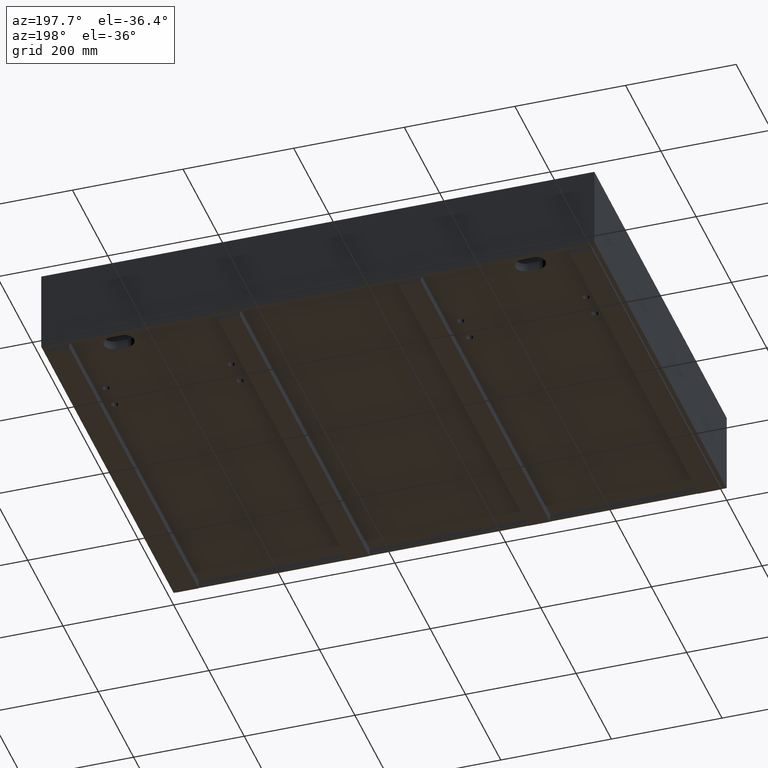
[diagram: clean part render]
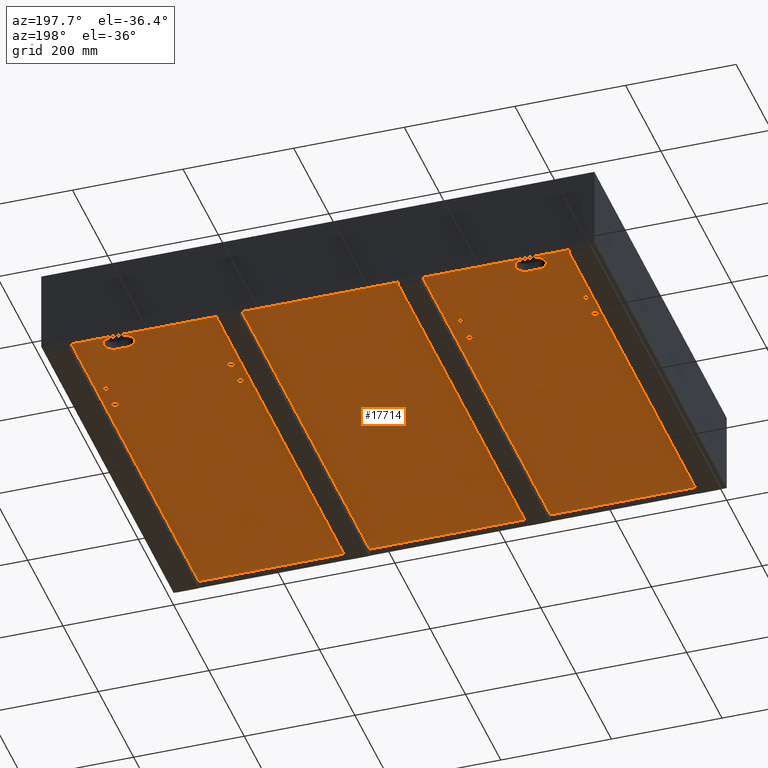
[diagram: same view with one face highlighted and labeled with its STEP entity id]
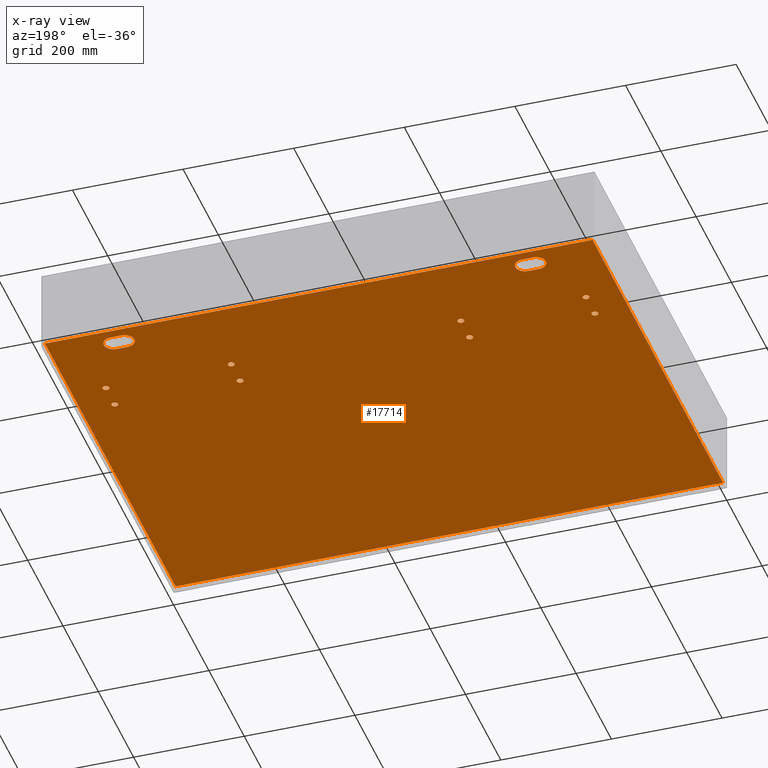
[diagram: x-ray of the same camera — body ghosted, the highlighted face saturated]
A machine part, auxiliary view. The second image highlights one B-rep face of the part: STEP entity #17714.
The next image is the same camera in x-ray: the body ghosted, the highlighted face saturated — about 0% of this face is hidden behind the body in this view.
In plain terms, the highlighted planar face has unit normal (0, -0, 1).
Its self-contained STEP definition (entity closure, byte-faithful):
#21 = DIRECTION ( 'NONE',  ( 1.000000000000000000, 0.0000000000000000000, 0.0000000000000000000 ) ) ;
#138 = CARTESIAN_POINT ( 'NONE',  ( 861.9999999999998863, 727.4999000000001388, -141.0000000000003411 ) ) ;
#200 = ORIENTED_EDGE ( 'NONE', *, *, #14091, .F. ) ;
#457 = DIRECTION ( 'NONE',  ( -0.0000000000000000000, -1.000000000000000000, -0.0000000000000000000 ) ) ;
#652 = DIRECTION ( 'NONE',  ( -1.401796748264086446E-16, 0.0000000000000000000, -1.000000000000000000 ) ) ;
#692 = DIRECTION ( 'NONE',  ( 0.0000000000000000000, 0.0000000000000000000, -1.000000000000000000 ) ) ;
#894 = VERTEX_POINT ( 'NONE', #2104 ) ;
#917 = ORIENTED_EDGE ( 'NONE', *, *, #12169, .F. ) ;
#936 = DIRECTION ( 'NONE',  ( -1.000000000000000000, 0.0000000000000000000, 1.387778780781444492E-15 ) ) ;
#978 = VERTEX_POINT ( 'NONE', #16687 ) ;
#1034 = FACE_BOUND ( 'NONE', #10863, .T. ) ;
#1117 = LINE ( 'NONE', #6865, #1889 ) ;
#1127 = VECTOR ( 'NONE', #3271, 1000.000000000000000 ) ;
#1156 = DIRECTION ( 'NONE',  ( -1.401796748264086446E-16, 0.0000000000000000000, -1.000000000000000000 ) ) ;
#1332 = DIRECTION ( 'NONE',  ( -1.401796748264086446E-16, 0.0000000000000000000, -1.000000000000000000 ) ) ;
#1379 = DIRECTION ( 'NONE',  ( 0.0000000000000000000, 0.0000000000000000000, -1.000000000000000000 ) ) ;
#1506 = DIRECTION ( 'NONE',  ( -1.401796748264086446E-16, 0.0000000000000000000, -1.000000000000000000 ) ) ;
#1555 = EDGE_CURVE ( 'NONE', #12931, #7201, #18020, .T. ) ;
#1605 = CIRCLE ( 'NONE', #12137, 5.999999999999894307 ) ;
#1611 = DIRECTION ( 'NONE',  ( -1.000000000000000000, 0.0000000000000000000, 0.0000000000000000000 ) ) ;
#1655 = CARTESIAN_POINT ( 'NONE',  ( 292.4999999999999432, 539.9999000000001388, -141.0000000000002842 ) ) ;
#1750 = EDGE_CURVE ( 'NONE', #6447, #5030, #18491, .T. ) ;
#1833 = ORIENTED_EDGE ( 'NONE', *, *, #12117, .F. ) ;
#1889 = VECTOR ( 'NONE', #12600, 1000.000000000000000 ) ;
#2081 = CARTESIAN_POINT ( 'NONE',  ( 292.4999999999999432, 589.9999000000001388, -141.0000000000002842 ) ) ;
#2104 = CARTESIAN_POINT ( 'NONE',  ( 118.0000000000002132, 727.4999000000000251, -141.0000000000002558 ) ) ;
#2143 = CARTESIAN_POINT ( 'NONE',  ( 5.000000000000004441, 1736.129184487637076, -141.0000000000002274 ) ) ;
#2175 = AXIS2_PLACEMENT_3D ( 'NONE', #14202, #1332, #7076 ) ;
#2183 = CARTESIAN_POINT ( 'NONE',  ( 292.4999999999999432, 589.9999000000001388, -141.0000000000002842 ) ) ;
#2221 = DIRECTION ( 'NONE',  ( -1.401796748264086446E-16, 0.0000000000000000000, -1.000000000000000000 ) ) ;
#2408 = VERTEX_POINT ( 'NONE', #15754 ) ;
#2444 = FACE_BOUND ( 'NONE', #18387, .T. ) ;
#2456 = AXIS2_PLACEMENT_3D ( 'NONE', #3547, #9306, #15005 ) ;
#2811 = CARTESIAN_POINT ( 'NONE',  ( 66.00000000000005684, 539.9999000000000251, -141.0000000000002274 ) ) ;
#2850 = CARTESIAN_POINT ( 'NONE',  ( 861.9999999999998863, 709.9999000000002525, -141.0000000000003411 ) ) ;
#2931 = CARTESIAN_POINT ( 'NONE',  ( 933.9999999999998863, 589.9999000000000251, -141.0000000000002274 ) ) ;
#3077 = CARTESIAN_POINT ( 'NONE',  ( 881.9999999999998863, 709.9999000000002525, -141.0000000000003695 ) ) ;
#3173 = CARTESIAN_POINT ( 'NONE',  ( 72.00000000000007105, 589.9999000000000251, -141.0000000000002274 ) ) ;
#3194 = AXIS2_PLACEMENT_3D ( 'NONE', #5781, #11529, #17253 ) ;
#3206 = LINE ( 'NONE', #8960, #6407 ) ;
#3214 = CIRCLE ( 'NONE', #3194, 17.49999999999996092 ) ;
#3215 = ORIENTED_EDGE ( 'NONE', *, *, #7215, .T. ) ;
#3228 = ORIENTED_EDGE ( 'NONE', *, *, #3232, .F. ) ;
#3232 = EDGE_CURVE ( 'NONE', #15272, #978, #3615, .T. ) ;
#3271 = DIRECTION ( 'NONE',  ( 1.000000000000000000, 0.0000000000000000000, -1.401796748264086446E-16 ) ) ;
#3404 = AXIS2_PLACEMENT_3D ( 'NONE', #18519, #5633, #11378 ) ;
#3423 = CARTESIAN_POINT ( 'NONE',  ( 701.5000000000002274, 539.9999000000001388, -141.0000000000003411 ) ) ;
#3462 = CARTESIAN_POINT ( 'NONE',  ( 927.9999999999997726, 589.9999000000000251, -141.0000000000002274 ) ) ;
#3547 = CARTESIAN_POINT ( 'NONE',  ( 934.0000000000000000, 539.9999000000000251, -141.0000000000002274 ) ) ;
#3615 = CIRCLE ( 'NONE', #11693, 5.999999999999894307 ) ;
#3682 = AXIS2_PLACEMENT_3D ( 'NONE', #2931, #8688, #14388 ) ;
#3700 = CARTESIAN_POINT ( 'NONE',  ( 861.9999999999998863, 692.4999000000003662, -141.0000000000003411 ) ) ;
#3739 = AXIS2_PLACEMENT_3D ( 'NONE', #13567, #692, #6433 ) ;
#3773 = ORIENTED_EDGE ( 'NONE', *, *, #1750, .F. ) ;
#3780 = EDGE_LOOP ( 'NONE', ( #4621, #8446 ) ) ;
#3820 = VECTOR ( 'NONE', #4779, 1000.000000000000000 ) ;
#3893 = ORIENTED_EDGE ( 'NONE', *, *, #4758, .F. ) ;
#3953 = CARTESIAN_POINT ( 'NONE',  ( 5.000000000000004441, 1736.129184487637076, -141.0000000000002274 ) ) ;
#4010 = EDGE_CURVE ( 'NONE', #9657, #18201, #10178, .T. ) ;
#4155 = EDGE_CURVE ( 'NONE', #18406, #9657, #9805, .T. ) ;
#4194 = EDGE_LOOP ( 'NONE', ( #13761, #7537 ) ) ;
#4421 = DIRECTION ( 'NONE',  ( 1.000000000000000000, 0.0000000000000000000, 0.0000000000000000000 ) ) ;
#4494 = VECTOR ( 'NONE', #7894, 1000.000000000000000 ) ;
#4555 = DIRECTION ( 'NONE',  ( -1.000000000000000000, 0.0000000000000000000, 0.0000000000000000000 ) ) ;
#4621 = ORIENTED_EDGE ( 'NONE', *, *, #14192, .F. ) ;
#4758 = EDGE_CURVE ( 'NONE', #11356, #5611, #8680, .T. ) ;
#4779 = DIRECTION ( 'NONE',  ( -1.000000000000000000, -0.0000000000000000000, 1.401796748264086693E-16 ) ) ;
#4790 = DIRECTION ( 'NONE',  ( 1.000000000000000000, 0.0000000000000000000, 0.0000000000000000000 ) ) ;
#4846 = EDGE_CURVE ( 'NONE', #10912, #8048, #8437, .T. ) ;
#4922 = CIRCLE ( 'NONE', #15425, 5.999999999999894307 ) ;
#5030 = VERTEX_POINT ( 'NONE', #5137 ) ;
#5088 = CARTESIAN_POINT ( 'NONE',  ( 861.9999999999998863, 709.9999000000002525, -141.0000000000003411 ) ) ;
#5137 = CARTESIAN_POINT ( 'NONE',  ( 713.5000000000000000, 539.9999000000001388, -141.0000000000003411 ) ) ;
#5292 = CIRCLE ( 'NONE', #3739, 6.000000000000019540 ) ;
#5370 = FACE_BOUND ( 'NONE', #18088, .T. ) ;
#5450 = CARTESIAN_POINT ( 'NONE',  ( 881.9999999999998863, 692.4999000000002525, -141.0000000000003411 ) ) ;
#5569 = AXIS2_PLACEMENT_3D ( 'NONE', #11719, #17438, #4555 ) ;
#5583 = CIRCLE ( 'NONE', #5569, 6.000000000000116351 ) ;
#5611 = VERTEX_POINT ( 'NONE', #18460 ) ;
#5633 = DIRECTION ( 'NONE',  ( 0.0000000000000000000, 0.0000000000000000000, -1.000000000000000000 ) ) ;
#5675 = EDGE_CURVE ( 'NONE', #15481, #10971, #6797, .T. ) ;
#5781 = CARTESIAN_POINT ( 'NONE',  ( 118.0000000000002132, 709.9999000000000251, -141.0000000000002558 ) ) ;
#5889 = VERTEX_POINT ( 'NONE', #10753 ) ;
#6073 = VECTOR ( 'NONE', #457, 1000.000000000000000 ) ;
#6077 = CARTESIAN_POINT ( 'NONE',  ( 5.000000000000004441, 5.000000000000004441, -141.0000000000002274 ) ) ;
#6107 = CARTESIAN_POINT ( 'NONE',  ( 881.9999999999998863, 727.4999000000001388, -141.0000000000003695 ) ) ;
#6130 = AXIS2_PLACEMENT_3D ( 'NONE', #3077, #8832, #14532 ) ;
#6342 = EDGE_CURVE ( 'NONE', #7770, #15950, #5583, .T. ) ;
#6361 = VERTEX_POINT ( 'NONE', #14597 ) ;
#6394 = DIRECTION ( 'NONE',  ( 1.000000000000000000, 0.0000000000000000000, 0.0000000000000000000 ) ) ;
#6407 = VECTOR ( 'NONE', #14660, 1000.000000000000000 ) ;
#6433 = DIRECTION ( 'NONE',  ( -1.000000000000000000, 0.0000000000000000000, 0.0000000000000000000 ) ) ;
#6447 = VERTEX_POINT ( 'NONE', #3423 ) ;
#6479 = EDGE_CURVE ( 'NONE', #5611, #11356, #5292, .T. ) ;
#6526 = EDGE_LOOP ( 'NONE', ( #10375, #3773 ) ) ;
#6629 = CARTESIAN_POINT ( 'NONE',  ( 940.0000000000001137, 539.9999000000000251, -141.0000000000002274 ) ) ;
#6755 = CARTESIAN_POINT ( 'NONE',  ( 118.0000000000002132, 692.4999000000001388, -141.0000000000002558 ) ) ;
#6763 = CARTESIAN_POINT ( 'NONE',  ( 72.00000000000007105, 539.9999000000000251, -141.0000000000002274 ) ) ;
#6782 = AXIS2_PLACEMENT_3D ( 'NONE', #7166, #12900, #21 ) ;
#6784 = FACE_BOUND ( 'NONE', #9454, .T. ) ;
#6797 = CIRCLE ( 'NONE', #6782, 17.49999999999996092 ) ;
#6818 = VERTEX_POINT ( 'NONE', #9231 ) ;
#6842 = VERTEX_POINT ( 'NONE', #12126 ) ;
#6858 = EDGE_CURVE ( 'NONE', #9680, #8620, #15022, .T. ) ;
#6865 = CARTESIAN_POINT ( 'NONE',  ( 881.9999999999998863, 727.4999000000001388, -141.0000000000003695 ) ) ;
#6905 = DIRECTION ( 'NONE',  ( 1.000000000000000000, 0.0000000000000000000, 0.0000000000000000000 ) ) ;
#7076 = DIRECTION ( 'NONE',  ( 1.000000000000000000, 0.0000000000000000000, 0.0000000000000000000 ) ) ;
#7122 = DIRECTION ( 'NONE',  ( -1.000000000000000000, 0.0000000000000000000, 0.0000000000000000000 ) ) ;
#7166 = CARTESIAN_POINT ( 'NONE',  ( 118.0000000000002132, 709.9999000000000251, -141.0000000000002558 ) ) ;
#7201 = VERTEX_POINT ( 'NONE', #14722 ) ;
#7215 = EDGE_CURVE ( 'NONE', #6818, #8620, #11932, .T. ) ;
#7246 = DIRECTION ( 'NONE',  ( 1.000000000000000000, 0.0000000000000000000, 0.0000000000000000000 ) ) ;
#7401 = DIRECTION ( 'NONE',  ( -1.401796748264086446E-16, 0.0000000000000000000, -1.000000000000000000 ) ) ;
#7516 = EDGE_CURVE ( 'NONE', #10971, #894, #3214, .T. ) ;
#7537 = ORIENTED_EDGE ( 'NONE', *, *, #10772, .F. ) ;
#7605 = LINE ( 'NONE', #13333, #6073 ) ;
#7731 = ORIENTED_EDGE ( 'NONE', *, *, #6858, .F. ) ;
#7770 = VERTEX_POINT ( 'NONE', #6629 ) ;
#7834 = DIRECTION ( 'NONE',  ( -1.401796748264086446E-16, 0.0000000000000000000, -1.000000000000000000 ) ) ;
#7846 = EDGE_LOOP ( 'NONE', ( #200, #11591, #15051, #15815, #13123 ) ) ;
#7863 = CIRCLE ( 'NONE', #18370, 5.999999999999894307 ) ;
#7894 = DIRECTION ( 'NONE',  ( -0.0000000000000000000, -1.000000000000000000, -0.0000000000000000000 ) ) ;
#7938 = DIRECTION ( 'NONE',  ( -1.401796748264086446E-16, 0.0000000000000000000, -1.000000000000000000 ) ) ;
#8048 = VERTEX_POINT ( 'NONE', #13822 ) ;
#8094 = LINE ( 'NONE', #13807, #10929 ) ;
#8195 = FACE_BOUND ( 'NONE', #4194, .T. ) ;
#8224 = DIRECTION ( 'NONE',  ( 1.000000000000000000, 0.0000000000000000000, 0.0000000000000000000 ) ) ;
#8437 = CIRCLE ( 'NONE', #10536, 5.999999999999894307 ) ;
#8446 = ORIENTED_EDGE ( 'NONE', *, *, #1555, .F. ) ;
#8472 = AXIS2_PLACEMENT_3D ( 'NONE', #11942, #17664, #4790 ) ;
#8563 = DIRECTION ( 'NONE',  ( 0.0000000000000000000, 0.0000000000000000000, -1.000000000000000000 ) ) ;
#8605 = DIRECTION ( 'NONE',  ( -1.423362852083534639E-16, 0.0000000000000000000, -1.000000000000000000 ) ) ;
#8620 = VERTEX_POINT ( 'NONE', #6077 ) ;
#8667 = AXIS2_PLACEMENT_3D ( 'NONE', #14249, #1379, #7122 ) ;
#8680 = CIRCLE ( 'NONE', #8667, 6.000000000000019540 ) ;
#8688 = DIRECTION ( 'NONE',  ( 0.0000000000000000000, 0.0000000000000000000, -1.000000000000000000 ) ) ;
#8783 = CARTESIAN_POINT ( 'NONE',  ( 933.9999999999998863, 589.9999000000000251, -141.0000000000002274 ) ) ;
#8832 = DIRECTION ( 'NONE',  ( -1.423362852083534639E-16, 0.0000000000000000000, -1.000000000000000000 ) ) ;
#8960 = CARTESIAN_POINT ( 'NONE',  ( 118.0000000000002132, 692.4999000000001388, -141.0000000000002558 ) ) ;
#9194 = VERTEX_POINT ( 'NONE', #14282 ) ;
#9231 = CARTESIAN_POINT ( 'NONE',  ( 995.0000000000000000, 5.000000000000004441, -141.0000000000003695 ) ) ;
#9306 = DIRECTION ( 'NONE',  ( 0.0000000000000000000, 0.0000000000000000000, -1.000000000000000000 ) ) ;
#9426 = CARTESIAN_POINT ( 'NONE',  ( 100.5000000000002558, 709.9999000000000251, -141.0000000000002558 ) ) ;
#9454 = EDGE_LOOP ( 'NONE', ( #11543, #13851 ) ) ;
#9458 = AXIS2_PLACEMENT_3D ( 'NONE', #8783, #14483, #1611 ) ;
#9624 = FACE_BOUND ( 'NONE', #7846, .T. ) ;
#9657 = VERTEX_POINT ( 'NONE', #17860 ) ;
#9680 = VERTEX_POINT ( 'NONE', #17959 ) ;
#9712 = DIRECTION ( 'NONE',  ( 1.401796748264086446E-16, -0.0000000000000000000, 1.000000000000000000 ) ) ;
#9804 = AXIS2_PLACEMENT_3D ( 'NONE', #5088, #10845, #16566 ) ;
#9805 = CIRCLE ( 'NONE', #9804, 17.49999999999985079 ) ;
#9963 = ORIENTED_EDGE ( 'NONE', *, *, #10783, .F. ) ;
#10153 = AXIS2_PLACEMENT_3D ( 'NONE', #2850, #8605, #14309 ) ;
#10178 = CIRCLE ( 'NONE', #10153, 17.49999999999985079 ) ;
#10306 = CIRCLE ( 'NONE', #2175, 5.999999999999894307 ) ;
#10375 = ORIENTED_EDGE ( 'NONE', *, *, #13253, .F. ) ;
#10437 = LINE ( 'NONE', #16156, #1127 ) ;
#10443 = ORIENTED_EDGE ( 'NONE', *, *, #5675, .F. ) ;
#10462 = ORIENTED_EDGE ( 'NONE', *, *, #17837, .T. ) ;
#10536 = AXIS2_PLACEMENT_3D ( 'NONE', #1655, #7401, #13135 ) ;
#10579 = ORIENTED_EDGE ( 'NONE', *, *, #6479, .F. ) ;
#10595 = CIRCLE ( 'NONE', #2456, 6.000000000000116351 ) ;
#10627 = ORIENTED_EDGE ( 'NONE', *, *, #13434, .F. ) ;
#10753 = CARTESIAN_POINT ( 'NONE',  ( 940.0000000000001137, 589.9999000000000251, -141.0000000000002274 ) ) ;
#10772 = EDGE_CURVE ( 'NONE', #8048, #10912, #7863, .T. ) ;
#10783 = EDGE_CURVE ( 'NONE', #894, #6842, #11586, .T. ) ;
#10845 = DIRECTION ( 'NONE',  ( -1.423362852083534639E-16, 0.0000000000000000000, -1.000000000000000000 ) ) ;
#10863 = EDGE_LOOP ( 'NONE', ( #13079, #1833 ) ) ;
#10887 = ORIENTED_EDGE ( 'NONE', *, *, #7516, .F. ) ;
#10912 = VERTEX_POINT ( 'NONE', #12052 ) ;
#10929 = VECTOR ( 'NONE', #936, 1000.000000000000000 ) ;
#10971 = VERTEX_POINT ( 'NONE', #9426 ) ;
#11122 = FACE_OUTER_BOUND ( 'NONE', #15058, .T. ) ;
#11265 = VERTEX_POINT ( 'NONE', #6107 ) ;
#11289 = EDGE_CURVE ( 'NONE', #16720, #6818, #7605, .T. ) ;
#11293 = EDGE_CURVE ( 'NONE', #6842, #2408, #16587, .T. ) ;
#11356 = VERTEX_POINT ( 'NONE', #3173 ) ;
#11378 = DIRECTION ( 'NONE',  ( -1.000000000000000000, 0.0000000000000000000, 0.0000000000000000000 ) ) ;
#11476 = EDGE_CURVE ( 'NONE', #15950, #7770, #10595, .T. ) ;
#11516 = CIRCLE ( 'NONE', #3404, 6.000000000000019540 ) ;
#11529 = DIRECTION ( 'NONE',  ( -1.423362852083534639E-16, 0.0000000000000000000, -1.000000000000000000 ) ) ;
#11543 = ORIENTED_EDGE ( 'NONE', *, *, #11476, .F. ) ;
#11586 = LINE ( 'NONE', #17308, #12661 ) ;
#11591 = ORIENTED_EDGE ( 'NONE', *, *, #13070, .F. ) ;
#11693 = AXIS2_PLACEMENT_3D ( 'NONE', #2183, #7938, #13654 ) ;
#11719 = CARTESIAN_POINT ( 'NONE',  ( 934.0000000000000000, 539.9999000000000251, -141.0000000000002274 ) ) ;
#11806 = CIRCLE ( 'NONE', #3682, 6.000000000000116351 ) ;
#11932 = LINE ( 'NONE', #17652, #3820 ) ;
#11942 = CARTESIAN_POINT ( 'NONE',  ( 138.0000000000002274, 709.9999000000000251, -141.0000000000002558 ) ) ;
#12052 = CARTESIAN_POINT ( 'NONE',  ( 298.4999999999998295, 539.9999000000001388, -141.0000000000002842 ) ) ;
#12117 = EDGE_CURVE ( 'NONE', #9194, #6361, #10306, .T. ) ;
#12126 = CARTESIAN_POINT ( 'NONE',  ( 138.0000000000002274, 727.4999000000001388, -141.0000000000002558 ) ) ;
#12137 = AXIS2_PLACEMENT_3D ( 'NONE', #14030, #1156, #6905 ) ;
#12169 = EDGE_CURVE ( 'NONE', #5889, #14419, #11806, .T. ) ;
#12212 = ORIENTED_EDGE ( 'NONE', *, *, #13905, .F. ) ;
#12413 = CARTESIAN_POINT ( 'NONE',  ( 286.5000000000000568, 589.9999000000001388, -141.0000000000002842 ) ) ;
#12518 = FACE_BOUND ( 'NONE', #13476, .T. ) ;
#12582 = ORIENTED_EDGE ( 'NONE', *, *, #17616, .F. ) ;
#12600 = DIRECTION ( 'NONE',  ( 1.000000000000000000, -0.0000000000000000000, -1.387778780781444492E-15 ) ) ;
#12661 = VECTOR ( 'NONE', #4421, 1000.000000000000000 ) ;
#12733 = EDGE_LOOP ( 'NONE', ( #9963, #10887, #10443, #12212, #13075 ) ) ;
#12900 = DIRECTION ( 'NONE',  ( -1.423362852083534639E-16, 0.0000000000000000000, -1.000000000000000000 ) ) ;
#12931 = VERTEX_POINT ( 'NONE', #6763 ) ;
#13070 = EDGE_CURVE ( 'NONE', #11265, #14148, #14197, .T. ) ;
#13075 = ORIENTED_EDGE ( 'NONE', *, *, #11293, .F. ) ;
#13079 = ORIENTED_EDGE ( 'NONE', *, *, #13286, .F. ) ;
#13123 = ORIENTED_EDGE ( 'NONE', *, *, #4155, .F. ) ;
#13135 = DIRECTION ( 'NONE',  ( 1.000000000000000000, 0.0000000000000000000, 0.0000000000000000000 ) ) ;
#13253 = EDGE_CURVE ( 'NONE', #5030, #6447, #4922, .T. ) ;
#13286 = EDGE_CURVE ( 'NONE', #6361, #9194, #1605, .T. ) ;
#13333 = CARTESIAN_POINT ( 'NONE',  ( 995.0000000000000000, 1736.129184487637076, -141.0000000000003695 ) ) ;
#13434 = EDGE_CURVE ( 'NONE', #14419, #5889, #17542, .T. ) ;
#13476 = EDGE_LOOP ( 'NONE', ( #10627, #917 ) ) ;
#13528 = CARTESIAN_POINT ( 'NONE',  ( 707.5000000000001137, 539.9999000000001388, -141.0000000000003411 ) ) ;
#13549 = DIRECTION ( 'NONE',  ( 1.000000000000000000, 0.0000000000000000000, 0.0000000000000000000 ) ) ;
#13567 = CARTESIAN_POINT ( 'NONE',  ( 66.00000000000005684, 589.9999000000000251, -141.0000000000002274 ) ) ;
#13654 = DIRECTION ( 'NONE',  ( 1.000000000000000000, 0.0000000000000000000, 0.0000000000000000000 ) ) ;
#13728 = CIRCLE ( 'NONE', #16151, 5.999999999999894307 ) ;
#13761 = ORIENTED_EDGE ( 'NONE', *, *, #4846, .F. ) ;
#13807 = CARTESIAN_POINT ( 'NONE',  ( 881.9999999999998863, 692.4999000000003662, -141.0000000000003695 ) ) ;
#13822 = CARTESIAN_POINT ( 'NONE',  ( 286.5000000000000568, 539.9999000000001388, -141.0000000000002842 ) ) ;
#13851 = ORIENTED_EDGE ( 'NONE', *, *, #6342, .F. ) ;
#13902 = FACE_BOUND ( 'NONE', #6526, .T. ) ;
#13905 = EDGE_CURVE ( 'NONE', #2408, #15481, #3206, .T. ) ;
#14030 = CARTESIAN_POINT ( 'NONE',  ( 707.5000000000001137, 589.9999000000001388, -141.0000000000003411 ) ) ;
#14091 = EDGE_CURVE ( 'NONE', #14148, #18406, #8094, .T. ) ;
#14145 = EDGE_CURVE ( 'NONE', #18201, #11265, #1117, .T. ) ;
#14148 = VERTEX_POINT ( 'NONE', #5450 ) ;
#14192 = EDGE_CURVE ( 'NONE', #7201, #12931, #11516, .T. ) ;
#14197 = CIRCLE ( 'NONE', #6130, 17.49999999999985079 ) ;
#14202 = CARTESIAN_POINT ( 'NONE',  ( 707.5000000000001137, 589.9999000000001388, -141.0000000000003411 ) ) ;
#14249 = CARTESIAN_POINT ( 'NONE',  ( 66.00000000000005684, 589.9999000000000251, -141.0000000000002274 ) ) ;
#14274 = DIRECTION ( 'NONE',  ( -1.000000000000000000, 0.0000000000000000000, 0.0000000000000000000 ) ) ;
#14282 = CARTESIAN_POINT ( 'NONE',  ( 701.5000000000002274, 589.9999000000001388, -141.0000000000003411 ) ) ;
#14309 = DIRECTION ( 'NONE',  ( -1.000000000000000000, 0.0000000000000000000, 0.0000000000000000000 ) ) ;
#14374 = CARTESIAN_POINT ( 'NONE',  ( 292.4999999999999432, 539.9999000000001388, -141.0000000000002842 ) ) ;
#14388 = DIRECTION ( 'NONE',  ( -1.000000000000000000, 0.0000000000000000000, 0.0000000000000000000 ) ) ;
#14419 = VERTEX_POINT ( 'NONE', #3462 ) ;
#14483 = DIRECTION ( 'NONE',  ( 0.0000000000000000000, 0.0000000000000000000, -1.000000000000000000 ) ) ;
#14532 = DIRECTION ( 'NONE',  ( -1.000000000000000000, 0.0000000000000000000, 0.0000000000000000000 ) ) ;
#14597 = CARTESIAN_POINT ( 'NONE',  ( 713.5000000000000000, 589.9999000000001388, -141.0000000000003411 ) ) ;
#14660 = DIRECTION ( 'NONE',  ( -1.000000000000000000, -0.0000000000000000000, -0.0000000000000000000 ) ) ;
#14722 = CARTESIAN_POINT ( 'NONE',  ( 60.00000000000004263, 539.9999000000000251, -141.0000000000002274 ) ) ;
#15005 = DIRECTION ( 'NONE',  ( -1.000000000000000000, 0.0000000000000000000, 0.0000000000000000000 ) ) ;
#15022 = LINE ( 'NONE', #2143, #4494 ) ;
#15051 = ORIENTED_EDGE ( 'NONE', *, *, #14145, .F. ) ;
#15058 = EDGE_LOOP ( 'NONE', ( #7731, #10462, #15429, #3215 ) ) ;
#15103 = CARTESIAN_POINT ( 'NONE',  ( 707.5000000000001137, 539.9999000000001388, -141.0000000000003411 ) ) ;
#15272 = VERTEX_POINT ( 'NONE', #12413 ) ;
#15330 = FACE_BOUND ( 'NONE', #12733, .T. ) ;
#15422 = DIRECTION ( 'NONE',  ( 1.000000000000000000, 0.0000000000000000000, -1.401796748264086446E-16 ) ) ;
#15425 = AXIS2_PLACEMENT_3D ( 'NONE', #15103, #2221, #8224 ) ;
#15429 = ORIENTED_EDGE ( 'NONE', *, *, #11289, .T. ) ;
#15481 = VERTEX_POINT ( 'NONE', #6755 ) ;
#15754 = CARTESIAN_POINT ( 'NONE',  ( 138.0000000000002274, 692.4999000000000251, -141.0000000000002558 ) ) ;
#15815 = ORIENTED_EDGE ( 'NONE', *, *, #4010, .F. ) ;
#15950 = VERTEX_POINT ( 'NONE', #18070 ) ;
#16151 = AXIS2_PLACEMENT_3D ( 'NONE', #2081, #7834, #13549 ) ;
#16156 = CARTESIAN_POINT ( 'NONE',  ( 5.000000000000004441, 744.9999000000000251, -141.0000000000002274 ) ) ;
#16566 = DIRECTION ( 'NONE',  ( -1.000000000000000000, 0.0000000000000000000, 0.0000000000000000000 ) ) ;
#16587 = CIRCLE ( 'NONE', #8472, 17.49999999999996092 ) ;
#16687 = CARTESIAN_POINT ( 'NONE',  ( 298.4999999999998295, 589.9999000000001388, -141.0000000000002842 ) ) ;
#16720 = VERTEX_POINT ( 'NONE', #17650 ) ;
#16754 = AXIS2_PLACEMENT_3D ( 'NONE', #3953, #9712, #15422 ) ;
#16847 = PLANE ( 'NONE',  #16754 ) ;
#17253 = DIRECTION ( 'NONE',  ( 1.000000000000000000, 0.0000000000000000000, 0.0000000000000000000 ) ) ;
#17308 = CARTESIAN_POINT ( 'NONE',  ( 118.0000000000002132, 727.4999000000001388, -141.0000000000002558 ) ) ;
#17438 = DIRECTION ( 'NONE',  ( 0.0000000000000000000, 0.0000000000000000000, -1.000000000000000000 ) ) ;
#17542 = CIRCLE ( 'NONE', #9458, 6.000000000000116351 ) ;
#17616 = EDGE_CURVE ( 'NONE', #978, #15272, #13728, .T. ) ;
#17650 = CARTESIAN_POINT ( 'NONE',  ( 995.0000000000000000, 744.9999000000000251, -141.0000000000003695 ) ) ;
#17652 = CARTESIAN_POINT ( 'NONE',  ( 5.000000000000004441, 5.000000000000004441, -141.0000000000002274 ) ) ;
#17664 = DIRECTION ( 'NONE',  ( -1.423362852083534639E-16, 0.0000000000000000000, -1.000000000000000000 ) ) ;
#17714 = ADVANCED_FACE ( 'NONE', ( #9624, #15330, #2444, #8195, #13902, #1034, #6784, #12518, #18258, #5370, #11122 ), #16847, .F. ) ;
#17837 = EDGE_CURVE ( 'NONE', #9680, #16720, #10437, .T. ) ;
#17860 = CARTESIAN_POINT ( 'NONE',  ( 844.5000000000000000, 709.9999000000002525, -141.0000000000003411 ) ) ;
#17959 = CARTESIAN_POINT ( 'NONE',  ( 5.000000000000004441, 744.9999000000000251, -141.0000000000002274 ) ) ;
#18020 = CIRCLE ( 'NONE', #18021, 6.000000000000019540 ) ;
#18021 = AXIS2_PLACEMENT_3D ( 'NONE', #2811, #8563, #14274 ) ;
#18070 = CARTESIAN_POINT ( 'NONE',  ( 927.9999999999998863, 539.9999000000000251, -141.0000000000002274 ) ) ;
#18088 = EDGE_LOOP ( 'NONE', ( #10579, #3893 ) ) ;
#18201 = VERTEX_POINT ( 'NONE', #138 ) ;
#18258 = FACE_BOUND ( 'NONE', #3780, .T. ) ;
#18370 = AXIS2_PLACEMENT_3D ( 'NONE', #14374, #1506, #7246 ) ;
#18387 = EDGE_LOOP ( 'NONE', ( #12582, #3228 ) ) ;
#18406 = VERTEX_POINT ( 'NONE', #3700 ) ;
#18460 = CARTESIAN_POINT ( 'NONE',  ( 60.00000000000004263, 589.9999000000000251, -141.0000000000002274 ) ) ;
#18491 = CIRCLE ( 'NONE', #18552, 5.999999999999894307 ) ;
#18519 = CARTESIAN_POINT ( 'NONE',  ( 66.00000000000005684, 539.9999000000000251, -141.0000000000002274 ) ) ;
#18552 = AXIS2_PLACEMENT_3D ( 'NONE', #13528, #652, #6394 ) ;